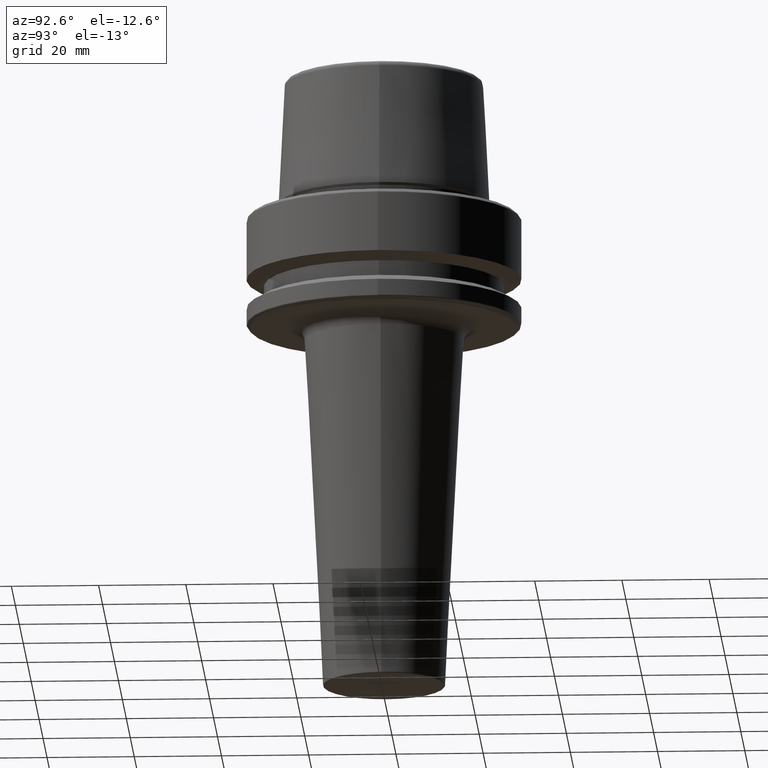
[diagram: clean part render]
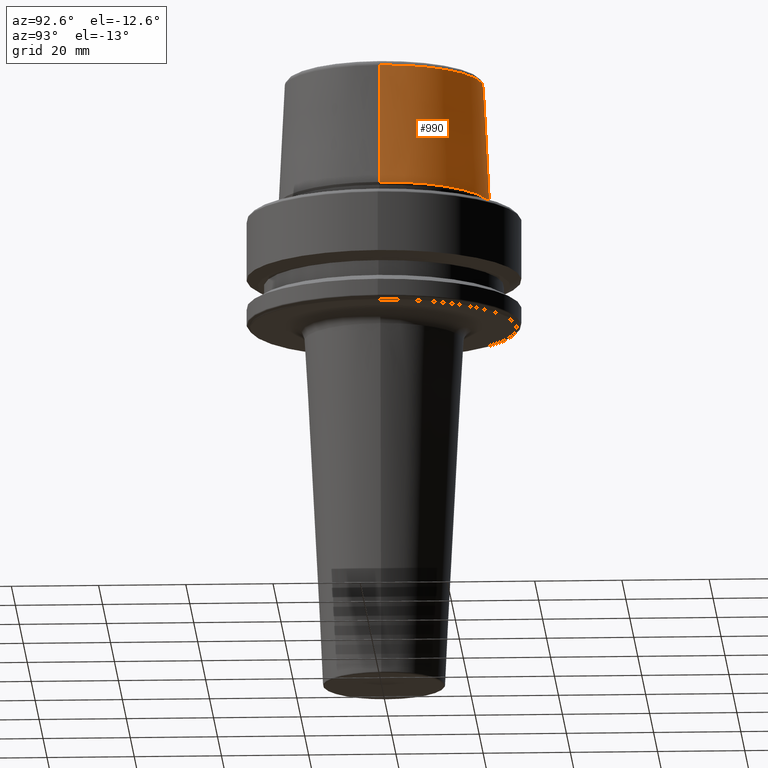
[diagram: same view with one face highlighted and labeled with its STEP entity id]
A machine part, auxiliary view. The second image highlights one B-rep face of the part: STEP entity #990.
In plain terms, the highlighted conical surface has half-angle 2.868 deg.
Its self-contained STEP definition (entity closure, byte-faithful):
#49 = FACE_OUTER_BOUND ( 'NONE', #206, .T. ) ;
#97 = CIRCLE ( 'NONE', #823, 22.77957961851797100 ) ;
#100 = AXIS2_PLACEMENT_3D ( 'NONE', #858, #891, #994 ) ;
#156 = DIRECTION ( 'NONE',  ( 1.000000000000000000, 0.0000000000000000000, 0.0000000000000000000 ) ) ;
#183 = DIRECTION ( 'NONE',  ( -0.0000000000000000000, -0.0000000000000000000, 1.000000000000000000 ) ) ;
#198 = ORIENTED_EDGE ( 'NONE', *, *, #1029, .T. ) ;
#206 = EDGE_LOOP ( 'NONE', ( #501, #198, #440, #999 ) ) ;
#238 = CARTESIAN_POINT ( 'NONE',  ( 0.0000000000000000000, 0.0000000000000000000, 3.000000000000002700 ) ) ;
#262 = CONICAL_SURFACE ( 'NONE', #100, 24.17032625081241900, 0.05005701257456005000 ) ;
#282 = VERTEX_POINT ( 'NONE', #334 ) ;
#334 = CARTESIAN_POINT ( 'NONE',  ( 22.77957961851797100, 2.874852597157249900E-015, 30.76004333261571900 ) ) ;
#381 = EDGE_CURVE ( 'NONE', #917, #1000, #470, .T. ) ;
#440 = ORIENTED_EDGE ( 'NONE', *, *, #381, .T. ) ;
#470 = CIRCLE ( 'NONE', #1248, 24.17032625081241900 ) ;
#501 = ORIENTED_EDGE ( 'NONE', *, *, #675, .F. ) ;
#517 = DIRECTION ( 'NONE',  ( 1.000000000000000000, 0.0000000000000000000, 0.0000000000000000000 ) ) ;
#528 = DIRECTION ( 'NONE',  ( -0.0000000000000000000, -0.0000000000000000000, 1.000000000000000000 ) ) ;
#531 = CARTESIAN_POINT ( 'NONE',  ( 0.0000000000000000000, 0.0000000000000000000, 30.76004333261571900 ) ) ;
#646 = LINE ( 'NONE', #801, #1003 ) ;
#675 = EDGE_CURVE ( 'NONE', #282, #1181, #97, .T. ) ;
#680 = LINE ( 'NONE', #1122, #729 ) ;
#729 = VECTOR ( 'NONE', #1206, 1000.000000000000200 ) ;
#751 = CARTESIAN_POINT ( 'NONE',  ( 24.17032625081241900, 0.0000000000000000000, 3.000000000000002700 ) ) ;
#793 = CARTESIAN_POINT ( 'NONE',  ( -24.17032625081241900, 2.960011267740467600E-015, 3.000000000000002700 ) ) ;
#801 = CARTESIAN_POINT ( 'NONE',  ( 24.17032625081241900, 2.960011267740467600E-015, 3.000000000000002700 ) ) ;
#807 = DIRECTION ( 'NONE',  ( 0.05003611051310812000, 6.127656258166108900E-018, -0.9987474093306675200 ) ) ;
#817 = EDGE_CURVE ( 'NONE', #1181, #1000, #680, .T. ) ;
#823 = AXIS2_PLACEMENT_3D ( 'NONE', #531, #528, #517 ) ;
#856 = CARTESIAN_POINT ( 'NONE',  ( -22.77957961851797100, 0.0000000000000000000, 30.76004333261571900 ) ) ;
#858 = CARTESIAN_POINT ( 'NONE',  ( 0.0000000000000000000, 0.0000000000000000000, 3.000000000000002700 ) ) ;
#891 = DIRECTION ( 'NONE',  ( 0.0000000000000000000, 0.0000000000000000000, -1.000000000000000000 ) ) ;
#917 = VERTEX_POINT ( 'NONE', #751 ) ;
#990 = ADVANCED_FACE ( 'NONE', ( #49 ), #262, .T. ) ;
#994 = DIRECTION ( 'NONE',  ( -1.000000000000000000, 0.0000000000000000000, 0.0000000000000000000 ) ) ;
#999 = ORIENTED_EDGE ( 'NONE', *, *, #817, .F. ) ;
#1000 = VERTEX_POINT ( 'NONE', #793 ) ;
#1003 = VECTOR ( 'NONE', #807, 1000.000000000000200 ) ;
#1029 = EDGE_CURVE ( 'NONE', #282, #917, #646, .T. ) ;
#1122 = CARTESIAN_POINT ( 'NONE',  ( -24.17032625081241900, 0.0000000000000000000, 3.000000000000002700 ) ) ;
#1181 = VERTEX_POINT ( 'NONE', #856 ) ;
#1206 = DIRECTION ( 'NONE',  ( -0.05003611051310812000, 0.0000000000000000000, -0.9987474093306675200 ) ) ;
#1248 = AXIS2_PLACEMENT_3D ( 'NONE', #238, #183, #156 ) ;